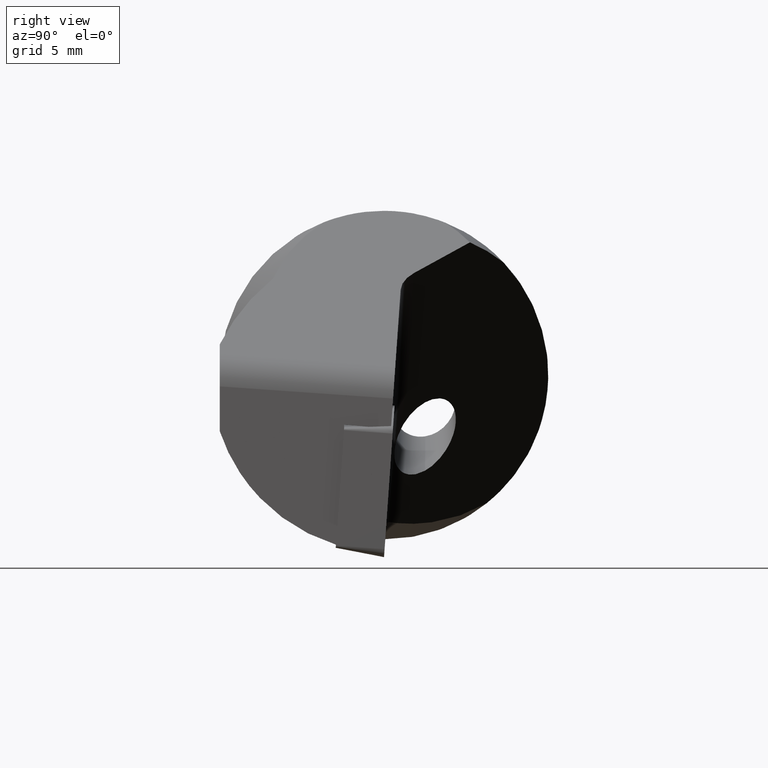
[diagram: clean part render]
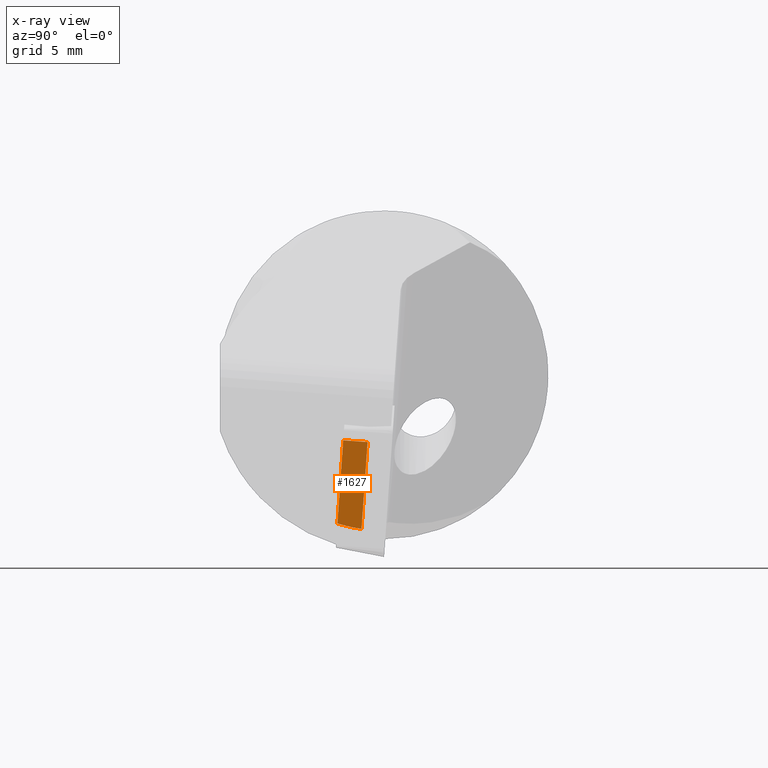
[diagram: x-ray — body ghosted, one internal face saturated and labeled with its STEP entity id]
A machine part, right view, then the same camera in x-ray: the body is ghosted and one INTERNAL B-rep face — a face not visible from any outside direction — is saturated and labeled: STEP entity #1627.
In plain terms, the highlighted planar face has unit normal (-1, 0, -0).
Its self-contained STEP definition (entity closure, byte-faithful):
#14 = VECTOR ( 'NONE', #953, 999.9999999999998900 ) ;
#79 = CARTESIAN_POINT ( 'NONE',  ( -6.203886372525541800, -1.096848831951451300, 1.373679481380403000 ) ) ;
#454 = ORIENTED_EDGE ( 'NONE', *, *, #1075, .F. ) ;
#558 = DIRECTION ( 'NONE',  ( -9.840283568347103700E-017, -1.000000000000000000, 0.0000000000000000000 ) ) ;
#784 = FACE_OUTER_BOUND ( 'NONE', #1729, .T. ) ;
#787 = AXIS2_PLACEMENT_3D ( 'NONE', #1680, #2612, #558 ) ;
#802 = LINE ( 'NONE', #1262, #14 ) ;
#953 = DIRECTION ( 'NONE',  ( 0.0000000000000000000, 0.06975647374412886900, 0.9975640502598240900 ) ) ;
#982 = CARTESIAN_POINT ( 'NONE',  ( -6.203886372525541800, -1.988039343950459800, 5.688409959316397900 ) ) ;
#1070 = CARTESIAN_POINT ( 'NONE',  ( -6.203886372525542600, -1.114346969246955200, 1.123444459803173600 ) ) ;
#1075 = EDGE_CURVE ( 'NONE', #3410, #2228, #802, .T. ) ;
#1128 = EDGE_CURVE ( 'NONE', #2897, #3410, #2835, .T. ) ;
#1262 = CARTESIAN_POINT ( 'NONE',  ( -6.203886372525541800, -2.292895773957992000, 1.328759897566238200 ) ) ;
#1627 = ADVANCED_FACE ( 'NONE', ( #784 ), #2187, .F. ) ;
#1680 = CARTESIAN_POINT ( 'NONE',  ( -6.203886372525541800, -2.292895773957992000, 1.328759897566238200 ) ) ;
#1729 = EDGE_LOOP ( 'NONE', ( #2463, #3157, #454, #3990 ) ) ;
#1894 = VECTOR ( 'NONE', #4109, 1000.000000000000100 ) ;
#2060 = AXIS2_PLACEMENT_3D ( 'NONE', #3416, #3371, #4541 ) ;
#2186 = CARTESIAN_POINT ( 'NONE',  ( -6.203886372525541800, 0.3861630956679215100, 5.522389551805371600 ) ) ;
#2187 = PLANE ( 'NONE',  #787 ) ;
#2228 = VERTEX_POINT ( 'NONE', #982 ) ;
#2463 = ORIENTED_EDGE ( 'NONE', *, *, #2659, .T. ) ;
#2612 = DIRECTION ( 'NONE',  ( -1.000000000000000000, 9.840283568347103700E-017, -6.880996585546588000E-018 ) ) ;
#2659 = EDGE_CURVE ( 'NONE', #2897, #4606, #3074, .T. ) ;
#2801 = CARTESIAN_POINT ( 'NONE',  ( -6.203886372525541800, -0.8009381241412693000, 5.605399755560885200 ) ) ;
#2835 = CIRCLE ( 'NONE', #2060, 7.581087447274197400 ) ;
#2897 = VERTEX_POINT ( 'NONE', #79 ) ;
#3074 = LINE ( 'NONE', #1070, #3536 ) ;
#3111 = LINE ( 'NONE', #2186, #1894 ) ;
#3157 = ORIENTED_EDGE ( 'NONE', *, *, #3615, .T. ) ;
#3371 = DIRECTION ( 'NONE',  ( -1.000000000000000000, 9.840283568347103700E-017, -6.880996585546588000E-018 ) ) ;
#3410 = VERTEX_POINT ( 'NONE', #3685 ) ;
#3416 = CARTESIAN_POINT ( 'NONE',  ( -6.203886372525541800, 1.090589529093219100E-015, 8.875000000000000000 ) ) ;
#3536 = VECTOR ( 'NONE', #4228, 999.9999999999998900 ) ;
#3615 = EDGE_CURVE ( 'NONE', #4606, #2228, #3111, .T. ) ;
#3685 = CARTESIAN_POINT ( 'NONE',  ( -6.203886372525541800, -2.270988078430582500, 1.642054539757362500 ) ) ;
#3990 = ORIENTED_EDGE ( 'NONE', *, *, #1128, .F. ) ;
#4109 = DIRECTION ( 'NONE',  ( 0.0000000000000000000, -0.9975640502598239800, 0.06975647374412886900 ) ) ;
#4228 = DIRECTION ( 'NONE',  ( 2.691406182905931000E-016, 0.06975647374412888300, 0.9975640502598240900 ) ) ;
#4541 = DIRECTION ( 'NONE',  ( -1.144112561714699700E-016, -1.000000000000000000, 0.0000000000000000000 ) ) ;
#4606 = VERTEX_POINT ( 'NONE', #2801 ) ;